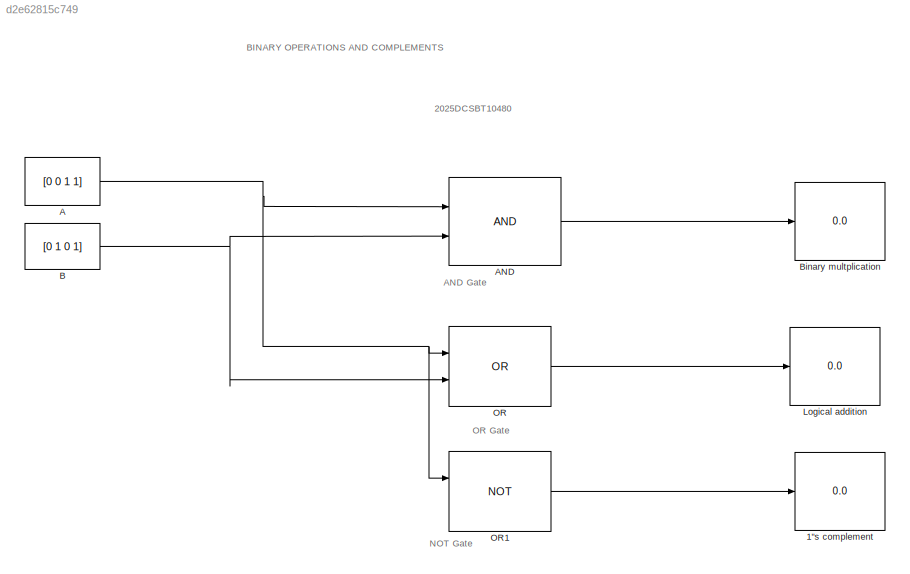
MODEL slx_d2e62815c749
KIND model
CONFIG AbsTol = auto
CONFIG EnableMultiTasking = off
CONFIG FixedStep = auto
CONFIG MaxStep = auto
CONFIG MinStep = auto
CONFIG RelTol = 1e-3
CONFIG SampleTimeConstraint = Unconstrained
CONFIG SolverName = VariableStepAuto
CONFIG StartTime = 0.0
CONFIG StopTime = 10.0
BLOCK [Display] 1"s complement
  Decimation = 1
BLOCK [Constant] A
  Value = [0 0 1 1]
BLOCK [Logic] AND
  AllPortsSameDT = off
  IconShape = distinctive
  OutDataTypeStr = boolean
BLOCK [Constant] B
  Value = [0 1 0 1]
BLOCK [Display] Binary multplication
  Decimation = 1
BLOCK [Display] Logical addition
  Decimation = 1
BLOCK [Logic] OR
  AllPortsSameDT = off
  IconShape = distinctive
  Operator = OR
  OutDataTypeStr = boolean
BLOCK [Logic] OR1
  AllPortsSameDT = off
  IconShape = distinctive
  Operator = NOT
  OutDataTypeStr = boolean
ANNOTATION (root): 2025DCSBT10480
ANNOTATION (root): AND Gate
ANNOTATION (root): NOT Gate
ANNOTATION (root): OR Gate
ANNOTATION (root): BINARY OPERATIONS AND COMPLEMENTS
NET A:1 -> AND:1, OR1:1, OR:1
LINE AND:1 -> Binary multplication:1
NET B:1 -> AND:2, OR:2
LINE OR1:1 -> 1"s complement:1
LINE OR:1 -> Logical addition:1
note: NET lines group one-source signal fan-out (src -> all destinations, sorted); 1:1 wires keep LINE
